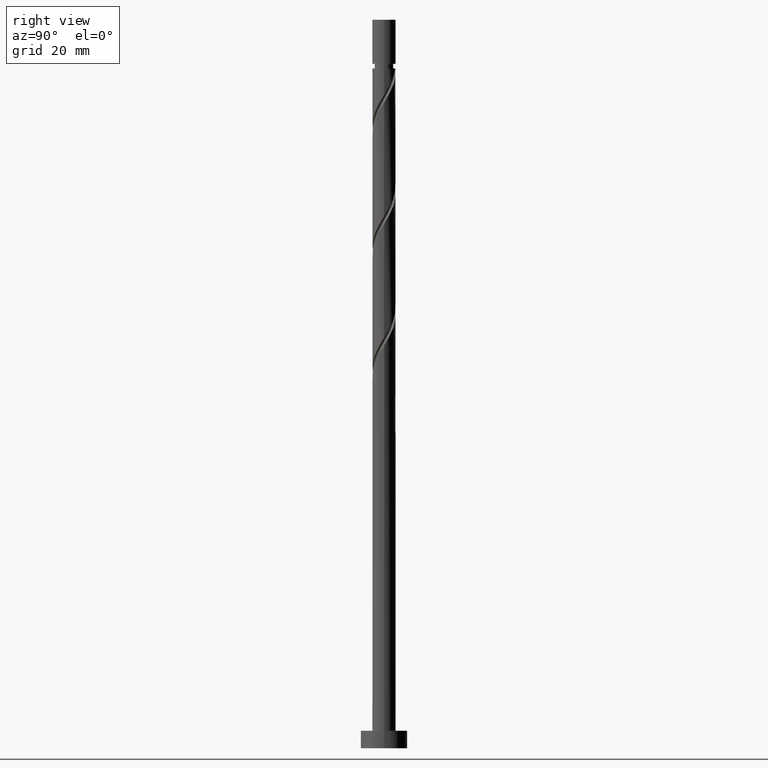
[diagram: clean part render]
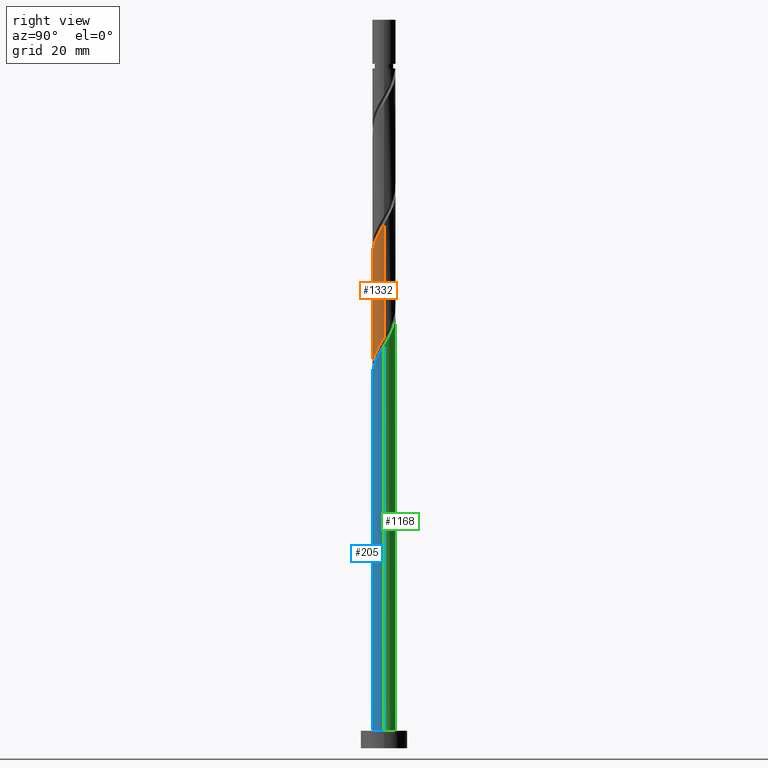
[diagram: same view with three faces highlighted in distinct colors, each labeled with its STEP entity id]
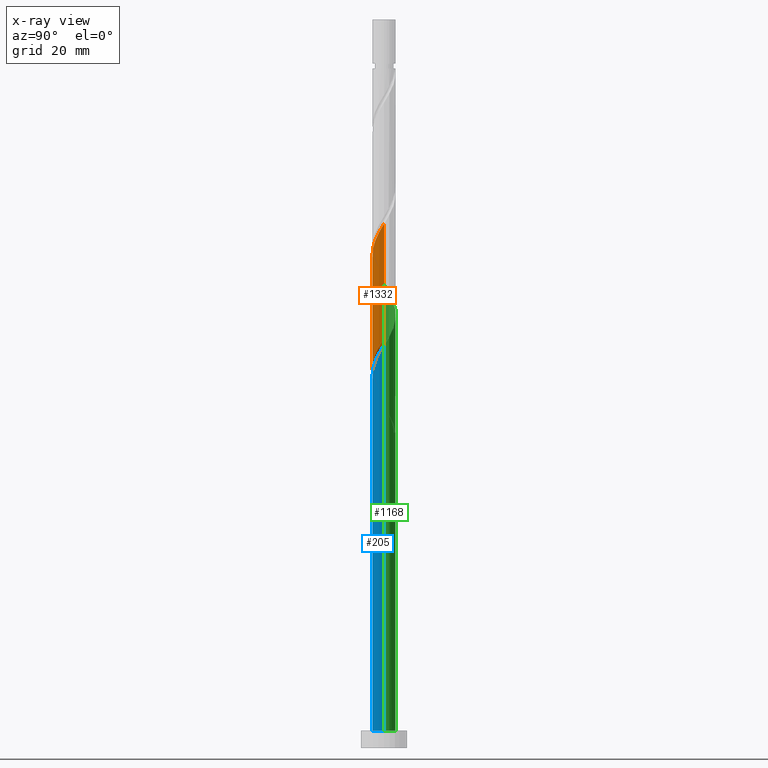
[diagram: x-ray of the same camera — body ghosted, the three highlighted faces saturated]
A machine part, right view with three faces highlighted in distinct colors.
The next image is the same camera in x-ray (body ghosted, the three faces saturated) — at least one of them is partly hidden behind the body in this view.
Their STEP definitions:

[orange] entity #1332 — the highlighted cylindrical surface (edge-blend (fillet) strip) has radius 2 mm, axis along (-0, -0, -1).
#10 = EDGE_CURVE ( 'NONE', #788, #484, #1406, .T. ) ;
#29 = ORIENTED_EDGE ( 'NONE', *, *, #1352, .F. ) ;
#47 = CARTESIAN_POINT ( 'NONE',  ( 2.000000000000000444, -0.2010075630518412537, 70.09353228896205223 ) ) ;
#54 = CARTESIAN_POINT ( 'NONE',  ( 1.474043792816781107, -1.351737732275876791, 87.47136775623299343 ) ) ;
#78 = DIRECTION ( 'NONE',  ( -0.000000000000000000, -0.000000000000000000, -1.000000000000000000 ) ) ;
#85 = CARTESIAN_POINT ( 'NONE',  ( -2.000000000000000000, -0.1139474748928700348, 60.20068128691049480 ) ) ;
#90 = EDGE_CURVE ( 'NONE', #788, #971, #322, .T. ) ;
#94 = CARTESIAN_POINT ( 'NONE',  ( -1.474043792816779552, -1.351737732275874571, 62.47136775623295080 ) ) ;
#100 = CARTESIAN_POINT ( 'NONE',  ( 2.000000000000000000, 2.908661939941925501E-15, 70.42783686436990820 ) ) ;
#118 = CARTESIAN_POINT ( 'NONE',  ( 2.000000000000000000, 2.449293598294705921E-16, 125.0000000000000000 ) ) ;
#151 = ORIENTED_EDGE ( 'NONE', *, *, #1450, .F. ) ;
#153 = VECTOR ( 'NONE', #78, 1000.000000000000000 ) ;
#174 = CARTESIAN_POINT ( 'NONE',  ( 2.000000000000000000, 2.908661939941925501E-15, 70.42783686436990820 ) ) ;
#184 = CARTESIAN_POINT ( 'NONE',  ( -1.960000000000003517, -0.3979949748426483969, 80.17970108956632203 ) ) ;
#191 = CARTESIAN_POINT ( 'NONE',  ( 0.7084284778787396375, -1.896963788657572092, 85.90886775623295080 ) ) ;
#207 = CARTESIAN_POINT ( 'NONE',  ( 0.08756147180655654561, -2.023036211342433610, 84.86720108956632203 ) ) ;
#214 = CARTESIAN_POINT ( 'NONE',  ( -1.819608885673918985, -0.8300743961697152340, 61.42970108956628650 ) ) ;
#239 = CARTESIAN_POINT ( 'NONE',  ( -1.688138017008851577, -1.118272131136731407, 61.95053442289962931 ) ) ;
#307 = CARTESIAN_POINT ( 'NONE',  ( 2.000000000000003553, 1.634248203369422348E-15, 89.93156531476270743 ) ) ;
#322 = LINE ( 'NONE', #806, #153 ) ;
#330 = CARTESIAN_POINT ( 'NONE',  ( -2.000000000000003553, -1.904124053467125253E-15, 79.51489864809602182 ) ) ;
#352 = CARTESIAN_POINT ( 'NONE',  ( -2.000000000000000444, 2.413889548096134639E-15, 60.01117019770322258 ) ) ;
#425 = CARTESIAN_POINT ( 'NONE',  ( 0.3979949748426482303, -1.960000000000003517, 85.38803442289960799 ) ) ;
#428 = AXIS2_PLACEMENT_3D ( 'NONE', #1144, #925, #1287 ) ;
#433 = CARTESIAN_POINT ( 'NONE',  ( -1.351737732275876791, -1.474043792816781107, 82.26303442289962220 ) ) ;
#444 = CYLINDRICAL_SURFACE ( 'NONE', #428, 2.000000000000000000 ) ;
#454 = CARTESIAN_POINT ( 'NONE',  ( 2.000000000000003553, -0.1139474748928598069, 89.74205422555542100 ) ) ;
#476 = CARTESIAN_POINT ( 'NONE',  ( 1.741083561036292915, -0.9841890232517234161, 68.72136775623296501 ) ) ;
#484 = VERTEX_POINT ( 'NONE', #986 ) ;
#491 = CARTESIAN_POINT ( 'NONE',  ( -0.7084284778787394155, -1.896963788657568539, 64.03386775623295080 ) ) ;
#537 = ORIENTED_EDGE ( 'NONE', *, *, #10, .F. ) ;
#553 = CARTESIAN_POINT ( 'NONE',  ( -0.8300743961697172324, -1.819608885673921650, 83.30470108956629360 ) ) ;
#573 = CARTESIAN_POINT ( 'NONE',  ( -1.118272131136734071, -1.688138017008854241, 82.78386775623296501 ) ) ;
#588 = CARTESIAN_POINT ( 'NONE',  ( -0.08756147180655729501, -2.023036211342430946, 65.07553442289960799 ) ) ;
#604 = VECTOR ( 'NONE', #821, 1000.000000000000000 ) ;
#653 = ORIENTED_EDGE ( 'NONE', *, *, #90, .T. ) ;
#715 = CARTESIAN_POINT ( 'NONE',  ( 0.8300743961697152340, -1.819608885673918985, 66.63803442289960799 ) ) ;
#724 = CARTESIAN_POINT ( 'NONE',  ( 1.118272131136731407, -1.688138017008851577, 67.15886775623295080 ) ) ;
#788 = VERTEX_POINT ( 'NONE', #811 ) ;
#806 = CARTESIAN_POINT ( 'NONE',  ( -2.000000000000000000, 0.000000000000000000, 125.0000000000000000 ) ) ;
#811 = CARTESIAN_POINT ( 'NONE',  ( -2.000000000000003553, -1.904124053467125253E-15, 79.51489864809602182 ) ) ;
#814 = CARTESIAN_POINT ( 'NONE',  ( -1.896963788657572092, -0.7084284778787399706, 80.70053442289963641 ) ) ;
#821 = DIRECTION ( 'NONE',  ( -0.000000000000000000, -0.000000000000000000, -1.000000000000000000 ) ) ;
#828 = VERTEX_POINT ( 'NONE', #100 ) ;
#905 = CARTESIAN_POINT ( 'NONE',  ( 1.951079754338990169, -0.5418766612026997276, 89.03386775623297922 ) ) ;
#914 = CARTESIAN_POINT ( 'NONE',  ( -2.000000000000003997, -0.2010075630518408374, 79.84920322350387778 ) ) ;
#925 = DIRECTION ( 'NONE',  ( -0.000000000000000000, -0.000000000000000000, -1.000000000000000000 ) ) ;
#926 = CARTESIAN_POINT ( 'NONE',  ( 1.819608885673921650, -0.8300743961697172324, 88.51303442289963641 ) ) ;
#934 = CARTESIAN_POINT ( 'NONE',  ( 1.259949568624708416, -1.585203333415019511, 86.95053442289962220 ) ) ;
#949 = CARTESIAN_POINT ( 'NONE',  ( 1.896963788657568539, -0.7084284778787395265, 69.24220108956626518 ) ) ;
#957 = CARTESIAN_POINT ( 'NONE',  ( 1.585203333415016402, -1.259949568624706862, 68.20053442289960799 ) ) ;
#971 = VERTEX_POINT ( 'NONE', #1331 ) ;
#972 = CARTESIAN_POINT ( 'NONE',  ( -1.987057982840708892, -0.2271575946980706195, 60.38803442289960799 ) ) ;
#986 = CARTESIAN_POINT ( 'NONE',  ( 2.000000000000003553, 1.634248203369422348E-15, 89.93156531476270743 ) ) ;
#1030 = CARTESIAN_POINT ( 'NONE',  ( 1.959999999999999964, -0.3979949748426484524, 69.76303442289962220 ) ) ;
#1045 = CARTESIAN_POINT ( 'NONE',  ( 1.987057982840712000, -0.2271575946980717020, 89.55470108956629360 ) ) ;
#1066 = CARTESIAN_POINT ( 'NONE',  ( -1.951079754338987282, -0.5418766612026981733, 60.90886775623295790 ) ) ;
#1073 = CARTESIAN_POINT ( 'NONE',  ( -1.259949568624706862, -1.585203333415016402, 62.99220108956627939 ) ) ;
#1144 = CARTESIAN_POINT ( 'NONE',  ( 0.000000000000000000, 0.000000000000000000, 125.0000000000000000 ) ) ;
#1192 = CARTESIAN_POINT ( 'NONE',  ( -0.9841890232517231940, -1.741083561036292915, 63.51303442289961509 ) ) ;
#1205 = LINE ( 'NONE', #118, #604 ) ;
#1243 = EDGE_LOOP ( 'NONE', ( #151, #537, #653, #29 ) ) ;
#1280 = CARTESIAN_POINT ( 'NONE',  ( 0.9841890232517241932, -1.741083561036296024, 86.42970108956629360 ) ) ;
#1287 = DIRECTION ( 'NONE',  ( -1.000000000000000000, 0.000000000000000000, 0.000000000000000000 ) ) ;
#1295 = CARTESIAN_POINT ( 'NONE',  ( -0.2271575946980715910, -1.987057982840712000, 84.34636775623295080 ) ) ;
#1331 = CARTESIAN_POINT ( 'NONE',  ( -2.000000000000000444, 2.413889548096134639E-15, 60.01117019770322258 ) ) ;
#1332 = ADVANCED_FACE ( 'NONE', ( #1524 ), #444, .T. ) ;
#1352 = EDGE_CURVE ( 'NONE', #828, #971, #1366, .T. ) ;
#1366 =( BOUNDED_CURVE ( )  B_SPLINE_CURVE ( 2, ( #174, #47, #1030, #949, #476, #957, #1553, #724, #715, #1440, #1572, #588, #1432, #491, #1192, #1073, #94, #239, #214, #1066, #972, #85, #352 ),
 .UNSPECIFIED., .F., .T. ) 
 B_SPLINE_CURVE_WITH_KNOTS ( ( 3, 2, 2, 2, 2, 2, 2, 2, 2, 2, 2, 3 ),
 ( 0.8045322023138551382, 0.8125000000000000000, 0.8249999999999999556, 0.8375000000000000222, 0.8499999999999999778, 0.8625000000000000444, 0.8750000000000000000, 0.8874999999999999556, 0.9000000000000000222, 0.9124999999999999778, 0.9250000000000000444, 0.9295322023138550271 ),
 .UNSPECIFIED. ) 
 CURVE ( )  GEOMETRIC_REPRESENTATION_ITEM ( )  RATIONAL_B_SPLINE_CURVE ( ( 0.9039174447099351806, 0.9019565955404644786, 0.9090909090909128354, 0.8978984914501290104, 0.9090909090909128354, 0.8978984914501290104, 0.9090909090909128354, 0.8978984914501290104, 0.9090909090909128354, 0.8978984914501290104, 0.9090909090909128354, 0.8978984914501290104, 0.9090909090909128354, 0.8978984914501290104, 0.9090909090909128354, 0.8978984914501290104, 0.9090909090909128354, 0.8978984914501290104, 0.9090909090909128354, 0.8978984914501290104, 0.9090909090909128354, 0.9050328050005774783, 0.9039174447099352916 ) ) 
 REPRESENTATION_ITEM ( '' )  );
#1395 = CARTESIAN_POINT ( 'NONE',  ( -0.5418766612026995055, -1.951079754338990169, 83.82553442289957957 ) ) ;
#1401 = CARTESIAN_POINT ( 'NONE',  ( -1.585203333415019511, -1.259949568624708416, 81.74220108956629360 ) ) ;
#1406 =( BOUNDED_CURVE ( )  B_SPLINE_CURVE ( 2, ( #330, #914, #184, #814, #1519, #1401, #433, #573, #553, #1395, #1295, #207, #425, #191, #1280, #934, #54, #1412, #926, #905, #1045, #454, #307 ),
 .UNSPECIFIED., .F., .T. ) 
 B_SPLINE_CURVE_WITH_KNOTS ( ( 3, 2, 2, 2, 2, 2, 2, 2, 2, 2, 2, 3 ),
 ( 0.3045322023138551382, 0.3125000000000000000, 0.3249999999999999556, 0.3375000000000000222, 0.3499999999999999778, 0.3625000000000000444, 0.3750000000000000000, 0.3874999999999999556, 0.4000000000000000222, 0.4124999999999999778, 0.4250000000000000444, 0.4295322023138554712 ),
 .UNSPECIFIED. ) 
 CURVE ( )  GEOMETRIC_REPRESENTATION_ITEM ( )  RATIONAL_B_SPLINE_CURVE ( ( 0.9039174447099409537, 0.9019565955404700297, 0.9090909090909186085, 0.8978984914501346726, 0.9090909090909186085, 0.8978984914501346726, 0.9090909090909186085, 0.8978984914501346726, 0.9090909090909186085, 0.8978984914501346726, 0.9090909090909186085, 0.8978984914501346726, 0.9090909090909186085, 0.8978984914501346726, 0.9090909090909186085, 0.8978984914501346726, 0.9090909090909186085, 0.8978984914501346726, 0.9090909090909186085, 0.8978984914501346726, 0.9090909090909186085, 0.9050328050005828073, 0.9039174447099407317 ) ) 
 REPRESENTATION_ITEM ( '' )  );
#1412 = CARTESIAN_POINT ( 'NONE',  ( 1.688138017008854241, -1.118272131136734515, 87.99220108956630781 ) ) ;
#1432 = CARTESIAN_POINT ( 'NONE',  ( -0.3979949748426483969, -1.959999999999999964, 64.55470108956629360 ) ) ;
#1440 = CARTESIAN_POINT ( 'NONE',  ( 0.5418766612026980622, -1.951079754338987282, 66.11720108956627939 ) ) ;
#1450 = EDGE_CURVE ( 'NONE', #484, #828, #1205, .T. ) ;
#1519 = CARTESIAN_POINT ( 'NONE',  ( -1.741083561036296024, -0.9841890232517241932, 81.22136775623296501 ) ) ;
#1524 = FACE_OUTER_BOUND ( 'NONE', #1243, .T. ) ;
#1553 = CARTESIAN_POINT ( 'NONE',  ( 1.351737732275874571, -1.474043792816779552, 67.67970108956626518 ) ) ;
#1572 = CARTESIAN_POINT ( 'NONE',  ( 0.2271575946980705085, -1.987057982840708892, 65.59636775623295080 ) ) ;

[blue] entity #205 — the highlighted cylindrical surface (edge-blend (fillet) strip) has radius 2 mm, axis along (-0, -0, -1).
#13 = CARTESIAN_POINT ( 'NONE',  ( -2.000000000000002220, -0.2010075630518456391, 59.01586989017054208 ) ) ;
#52 = CARTESIAN_POINT ( 'NONE',  ( 1.259949568624708416, -1.585203333415019511, 66.11720108956629360 ) ) ;
#58 = EDGE_CURVE ( 'NONE', #948, #1570, #445, .T. ) ;
#61 = CARTESIAN_POINT ( 'NONE',  ( -1.896963788657572092, -0.7084284778787399706, 59.86720108956630071 ) ) ;
#62 = VECTOR ( 'NONE', #485, 1000.000000000000000 ) ;
#64 = DIRECTION ( 'NONE',  ( -0.000000000000000000, -0.000000000000000000, -1.000000000000000000 ) ) ;
#119 = DIRECTION ( 'NONE',  ( -0.000000000000000000, -0.000000000000000000, -1.000000000000000000 ) ) ;
#125 = ORIENTED_EDGE ( 'NONE', *, *, #1027, .T. ) ;
#181 = CARTESIAN_POINT ( 'NONE',  ( -0.2271575946980715910, -1.987057982840712000, 63.51303442289962931 ) ) ;
#205 = ADVANCED_FACE ( 'NONE', ( #831 ), #353, .T. ) ;
#305 = CARTESIAN_POINT ( 'NONE',  ( 2.000000000000003553, -0.1139474748928625686, 68.90872089222207819 ) ) ;
#353 = CYLINDRICAL_SURFACE ( 'NONE', #1370, 2.000000000000000000 ) ;
#379 = ORIENTED_EDGE ( 'NONE', *, *, #565, .F. ) ;
#388 = VERTEX_POINT ( 'NONE', #1493 ) ;
#401 = CARTESIAN_POINT ( 'NONE',  ( 2.000000000000003553, 1.634248203369422348E-15, 69.09823198142936462 ) ) ;
#423 = CARTESIAN_POINT ( 'NONE',  ( 0.3979949748426482303, -1.960000000000003517, 64.55470108956629360 ) ) ;
#443 = CARTESIAN_POINT ( 'NONE',  ( 1.474043792816781107, -1.351737732275876791, 66.63803442289963641 ) ) ;
#445 = LINE ( 'NONE', #671, #1090 ) ;
#451 = AXIS2_PLACEMENT_3D ( 'NONE', #1001, #729, #1245 ) ;
#452 = CARTESIAN_POINT ( 'NONE',  ( 1.688138017008854241, -1.118272131136734515, 67.15886775623296501 ) ) ;
#477 = VERTEX_POINT ( 'NONE', #534 ) ;
#485 = DIRECTION ( 'NONE',  ( -0.000000000000000000, -0.000000000000000000, -1.000000000000000000 ) ) ;
#500 = CIRCLE ( 'NONE', #451, 2.000000000000000000 ) ;
#525 = ORIENTED_EDGE ( 'NONE', *, *, #1404, .T. ) ;
#534 = CARTESIAN_POINT ( 'NONE',  ( -2.000000000000003553, -1.904124053467125253E-15, 58.68156531476270743 ) ) ;
#558 = CARTESIAN_POINT ( 'NONE',  ( 1.951079754338990169, -0.5418766612026997276, 68.20053442289962220 ) ) ;
#565 = EDGE_CURVE ( 'NONE', #477, #948, #665, .T. ) ;
#589 = DIRECTION ( 'NONE',  ( -1.000000000000000000, 0.000000000000000000, 0.000000000000000000 ) ) ;
#641 = EDGE_LOOP ( 'NONE', ( #1477, #379, #525, #125 ) ) ;
#662 = CARTESIAN_POINT ( 'NONE',  ( -0.8300743961697172324, -1.819608885673921650, 62.47136775623296501 ) ) ;
#665 =( BOUNDED_CURVE ( )  B_SPLINE_CURVE ( 2, ( #762, #13, #1248, #61, #911, #1409, #1166, #684, #662, #1529, #181, #1399, #423, #1143, #1393, #52, #443, #452, #669, #558, #1037, #305, #924 ),
 .UNSPECIFIED., .F., .T. ) 
 B_SPLINE_CURVE_WITH_KNOTS ( ( 3, 2, 2, 2, 2, 2, 2, 2, 2, 2, 2, 3 ),
 ( 0.05453220231385533245, 0.06250000000000000000, 0.07499999999999995559, 0.08750000000000002220, 0.09999999999999997780, 0.1125000000000000444, 0.1250000000000000000, 0.1374999999999999556, 0.1500000000000000222, 0.1624999999999999778, 0.1750000000000000444, 0.1795322023138553602 ),
 .UNSPECIFIED. ) 
 CURVE ( )  GEOMETRIC_REPRESENTATION_ITEM ( )  RATIONAL_B_SPLINE_CURVE ( ( 0.9039174447099408427, 0.9019565955404703628, 0.9090909090909186085, 0.8978984914501346726, 0.9090909090909186085, 0.8978984914501346726, 0.9090909090909186085, 0.8978984914501346726, 0.9090909090909186085, 0.8978984914501346726, 0.9090909090909186085, 0.8978984914501346726, 0.9090909090909186085, 0.8978984914501346726, 0.9090909090909186085, 0.8978984914501346726, 0.9090909090909186085, 0.8978984914501346726, 0.9090909090909186085, 0.8978984914501346726, 0.9090909090909186085, 0.9050328050005829184, 0.9039174447099408427 ) ) 
 REPRESENTATION_ITEM ( '' )  );
#669 = CARTESIAN_POINT ( 'NONE',  ( 1.819608885673921650, -0.8300743961697172324, 67.67970108956627939 ) ) ;
#671 = CARTESIAN_POINT ( 'NONE',  ( 2.000000000000000000, 2.449293598294705921E-16, 125.0000000000000000 ) ) ;
#684 = CARTESIAN_POINT ( 'NONE',  ( -1.118272131136734071, -1.688138017008854241, 61.95053442289962931 ) ) ;
#729 = DIRECTION ( 'NONE',  ( 0.000000000000000000, 0.000000000000000000, 1.000000000000000000 ) ) ;
#762 = CARTESIAN_POINT ( 'NONE',  ( -2.000000000000003553, -1.904124053467125253E-15, 58.68156531476270743 ) ) ;
#830 = LINE ( 'NONE', #1546, #62 ) ;
#831 = FACE_OUTER_BOUND ( 'NONE', #641, .T. ) ;
#911 = CARTESIAN_POINT ( 'NONE',  ( -1.741083561036296024, -0.9841890232517241932, 60.38803442289961509 ) ) ;
#924 = CARTESIAN_POINT ( 'NONE',  ( 2.000000000000003553, 1.634248203369422348E-15, 69.09823198142936462 ) ) ;
#948 = VERTEX_POINT ( 'NONE', #401 ) ;
#979 = CARTESIAN_POINT ( 'NONE',  ( 2.000000000000000000, 2.449293598294705921E-16, 3.000000000000000000 ) ) ;
#1001 = CARTESIAN_POINT ( 'NONE',  ( 0.000000000000000000, 0.000000000000000000, 3.000000000000000000 ) ) ;
#1027 = EDGE_CURVE ( 'NONE', #388, #1570, #500, .T. ) ;
#1037 = CARTESIAN_POINT ( 'NONE',  ( 1.987057982840712000, -0.2271575946980717020, 68.72136775623295080 ) ) ;
#1090 = VECTOR ( 'NONE', #64, 1000.000000000000000 ) ;
#1143 = CARTESIAN_POINT ( 'NONE',  ( 0.7084284778787396375, -1.896963788657572092, 65.07553442289962220 ) ) ;
#1166 = CARTESIAN_POINT ( 'NONE',  ( -1.351737732275876791, -1.474043792816781107, 61.42970108956629360 ) ) ;
#1245 = DIRECTION ( 'NONE',  ( 1.000000000000000000, 0.000000000000000000, 0.000000000000000000 ) ) ;
#1248 = CARTESIAN_POINT ( 'NONE',  ( -1.960000000000003517, -0.3979949748426483969, 59.34636775623296501 ) ) ;
#1370 = AXIS2_PLACEMENT_3D ( 'NONE', #1547, #119, #589 ) ;
#1393 = CARTESIAN_POINT ( 'NONE',  ( 0.9841890232517241932, -1.741083561036296024, 65.59636775623295080 ) ) ;
#1399 = CARTESIAN_POINT ( 'NONE',  ( 0.08756147180655654561, -2.023036211342433610, 64.03386775623297922 ) ) ;
#1404 = EDGE_CURVE ( 'NONE', #477, #388, #830, .T. ) ;
#1409 = CARTESIAN_POINT ( 'NONE',  ( -1.585203333415019511, -1.259949568624708416, 60.90886775623296501 ) ) ;
#1477 = ORIENTED_EDGE ( 'NONE', *, *, #58, .F. ) ;
#1493 = CARTESIAN_POINT ( 'NONE',  ( -2.000000000000000000, 0.000000000000000000, 3.000000000000000000 ) ) ;
#1529 = CARTESIAN_POINT ( 'NONE',  ( -0.5418766612026995055, -1.951079754338990169, 62.99220108956630781 ) ) ;
#1546 = CARTESIAN_POINT ( 'NONE',  ( -2.000000000000000000, 0.000000000000000000, 125.0000000000000000 ) ) ;
#1547 = CARTESIAN_POINT ( 'NONE',  ( 0.000000000000000000, 0.000000000000000000, 125.0000000000000000 ) ) ;
#1570 = VERTEX_POINT ( 'NONE', #979 ) ;

[green] entity #1168 — the highlighted cylindrical surface (edge-blend (fillet) strip) has radius 2 mm, axis along (-0, -0, -1).
#7 =( BOUNDED_CURVE ( )  B_SPLINE_CURVE ( 2, ( #109, #1455, #1082, #216, #702, #240, #857, #1067, #470, #725, #1206 ),
 .UNSPECIFIED., .F., .T. ) 
 B_SPLINE_CURVE_WITH_KNOTS ( ( 3, 2, 2, 2, 2, 3 ),
 ( 0.000000000000000000, 0.01249999999999995559, 0.02500000000000002220, 0.03749999999999997780, 0.05000000000000004441, 0.05453220231385533245 ),
 .UNSPECIFIED. ) 
 CURVE ( )  GEOMETRIC_REPRESENTATION_ITEM ( )  RATIONAL_B_SPLINE_CURVE ( ( 0.9090909090909186085, 0.8978984914501346726, 0.9090909090909186085, 0.8978984914501346726, 0.9090909090909186085, 0.8978984914501346726, 0.9090909090909186085, 0.8978984914501346726, 0.9090909090909186085, 0.9050328050005829184, 0.9039174447099408427 ) ) 
 REPRESENTATION_ITEM ( '' )  );
#19 = CARTESIAN_POINT ( 'NONE',  ( -0.2271575946980707306, 1.987057982840708892, 55.17970108956629360 ) ) ;
#36 = CARTESIAN_POINT ( 'NONE',  ( -2.000000000000000888, 0.2010075630518382006, 59.67686562229538794 ) ) ;
#41 = EDGE_CURVE ( 'NONE', #948, #788, #155, .T. ) ;
#55 = EDGE_LOOP ( 'NONE', ( #796, #1222, #594, #419, #730, #126, #775, #256 ) ) ;
#58 = EDGE_CURVE ( 'NONE', #948, #1570, #445, .T. ) ;
#62 = VECTOR ( 'NONE', #485, 1000.000000000000000 ) ;
#64 = DIRECTION ( 'NONE',  ( -0.000000000000000000, -0.000000000000000000, -1.000000000000000000 ) ) ;
#70 = VERTEX_POINT ( 'NONE', #1525 ) ;
#75 = DIRECTION ( 'NONE',  ( 0.000000000000000000, -2.602085213965211588E-14, -1.000000000000000000 ) ) ;
#78 = DIRECTION ( 'NONE',  ( -0.000000000000000000, -0.000000000000000000, -1.000000000000000000 ) ) ;
#90 = EDGE_CURVE ( 'NONE', #788, #971, #322, .T. ) ;
#109 = CARTESIAN_POINT ( 'NONE',  ( -0.3979949748426479528, 1.960000000000003517, 54.13803442289962220 ) ) ;
#126 = ORIENTED_EDGE ( 'NONE', *, *, #584, .T. ) ;
#149 = CARTESIAN_POINT ( 'NONE',  ( -0.8300743961697154560, 1.819608885673918985, 56.22136775623295080 ) ) ;
#153 = VECTOR ( 'NONE', #78, 1000.000000000000000 ) ;
#155 =( BOUNDED_CURVE ( )  B_SPLINE_CURVE ( 2, ( #1266, #789, #1040, #1161, #1418, #920, #176, #560, #693, #664, #1274, #679, #1288, #1177, #782, #581, #1503, #1052, #300, #1145, #1031, #1511, #1154 ),
 .UNSPECIFIED., .F., .T. ) 
 B_SPLINE_CURVE_WITH_KNOTS ( ( 3, 2, 2, 2, 2, 2, 2, 2, 2, 2, 2, 3 ),
 ( 0.1795322023138553602, 0.1875000000000000000, 0.1999999999999999556, 0.2125000000000000222, 0.2249999999999999778, 0.2375000000000000444, 0.2500000000000000000, 0.2624999999999999556, 0.2750000000000000222, 0.2874999999999999778, 0.3000000000000000444, 0.3045322023138551382 ),
 .UNSPECIFIED. ) 
 CURVE ( )  GEOMETRIC_REPRESENTATION_ITEM ( )  RATIONAL_B_SPLINE_CURVE ( ( 0.9039174447099408427, 0.9019565955404703628, 0.9090909090909186085, 0.8978984914501346726, 0.9090909090909186085, 0.8978984914501346726, 0.9090909090909186085, 0.8978984914501346726, 0.9090909090909186085, 0.8978984914501346726, 0.9090909090909186085, 0.8978984914501346726, 0.9090909090909186085, 0.8978984914501346726, 0.9090909090909186085, 0.8978984914501346726, 0.9090909090909186085, 0.8978984914501346726, 0.9090909090909186085, 0.8978984914501346726, 0.9090909090909186085, 0.9050328050005831404, 0.9039174447099409537 ) ) 
 REPRESENTATION_ITEM ( '' )  );
#176 = CARTESIAN_POINT ( 'NONE',  ( 1.351737732275877013, 1.474043792816781107, 71.84636775623296501 ) ) ;
#187 = AXIS2_PLACEMENT_3D ( 'NONE', #930, #75, #1416 ) ;
#216 = CARTESIAN_POINT ( 'NONE',  ( -1.259949568624708416, 1.585203333415019511, 55.70053442289962931 ) ) ;
#240 = CARTESIAN_POINT ( 'NONE',  ( -1.688138017008854463, 1.118272131136734071, 56.74220108956628650 ) ) ;
#254 = EDGE_CURVE ( 'NONE', #70, #477, #7, .T. ) ;
#256 = ORIENTED_EDGE ( 'NONE', *, *, #90, .F. ) ;
#281 = DIRECTION ( 'NONE',  ( -0.000000000000000000, -0.000000000000000000, -1.000000000000000000 ) ) ;
#300 = CARTESIAN_POINT ( 'NONE',  ( -1.819608885673922094, 0.8300743961697170104, 78.09636775623295080 ) ) ;
#322 = LINE ( 'NONE', #806, #153 ) ;
#340 =( BOUNDED_CURVE ( )  B_SPLINE_CURVE ( 2, ( #1238, #36, #499, #1256, #506, #1119, #870, #747, #149, #1348, #19, #639, #620 ),
 .UNSPECIFIED., .F., .T. ) 
 B_SPLINE_CURVE_WITH_KNOTS ( ( 3, 2, 2, 2, 2, 2, 3 ),
 ( 0.9295322023138550271, 0.9375000000000000000, 0.9499999999999999556, 0.9625000000000000222, 0.9749999999999999778, 0.9875000000000000444, 1.000000000000000000 ),
 .UNSPECIFIED. ) 
 CURVE ( )  GEOMETRIC_REPRESENTATION_ITEM ( )  RATIONAL_B_SPLINE_CURVE ( ( 0.9039174447099352916, 0.9019565955404643676, 0.9090909090909128354, 0.8978984914501290104, 0.9090909090909128354, 0.8978984914501290104, 0.9090909090909128354, 0.8978984914501290104, 0.9090909090909128354, 0.8978984914501290104, 0.9090909090909128354, 0.8978984914501290104, 0.9090909090909128354 ) ) 
 REPRESENTATION_ITEM ( '' )  );
#388 = VERTEX_POINT ( 'NONE', #1493 ) ;
#401 = CARTESIAN_POINT ( 'NONE',  ( 2.000000000000003553, 1.634248203369422348E-15, 69.09823198142936462 ) ) ;
#419 = ORIENTED_EDGE ( 'NONE', *, *, #1404, .F. ) ;
#438 = DIRECTION ( 'NONE',  ( 0.000000000000000000, 0.000000000000000000, 1.000000000000000000 ) ) ;
#445 = LINE ( 'NONE', #671, #1090 ) ;
#468 = EDGE_CURVE ( 'NONE', #971, #903, #340, .T. ) ;
#470 = CARTESIAN_POINT ( 'NONE',  ( -1.987057982840712000, 0.2271575946980715077, 58.30470108956629360 ) ) ;
#477 = VERTEX_POINT ( 'NONE', #534 ) ;
#485 = DIRECTION ( 'NONE',  ( -0.000000000000000000, -0.000000000000000000, -1.000000000000000000 ) ) ;
#499 = CARTESIAN_POINT ( 'NONE',  ( -1.959999999999999964, 0.3979949748426482303, 59.34636775623296501 ) ) ;
#506 = CARTESIAN_POINT ( 'NONE',  ( -1.741083561036292915, 0.9841890232517231940, 58.30470108956628650 ) ) ;
#524 = FACE_OUTER_BOUND ( 'NONE', #55, .T. ) ;
#534 = CARTESIAN_POINT ( 'NONE',  ( -2.000000000000003553, -1.904124053467125253E-15, 58.68156531476270743 ) ) ;
#560 = CARTESIAN_POINT ( 'NONE',  ( 1.118272131136734515, 1.688138017008854241, 72.36720108956627939 ) ) ;
#581 = CARTESIAN_POINT ( 'NONE',  ( -1.259949568624708416, 1.585203333415019511, 76.53386775623299343 ) ) ;
#584 = EDGE_CURVE ( 'NONE', #70, #903, #1555, .T. ) ;
#594 = ORIENTED_EDGE ( 'NONE', *, *, #659, .T. ) ;
#602 = AXIS2_PLACEMENT_3D ( 'NONE', #749, #281, #634 ) ;
#620 = CARTESIAN_POINT ( 'NONE',  ( 0.3979949748426486189, 1.960000000000000409, 54.13803442289962220 ) ) ;
#634 = DIRECTION ( 'NONE',  ( -1.000000000000000000, 0.000000000000000000, 0.000000000000000000 ) ) ;
#639 = CARTESIAN_POINT ( 'NONE',  ( 0.08756147180655703133, 2.023036211342430946, 54.65886775623293659 ) ) ;
#659 = EDGE_CURVE ( 'NONE', #1570, #388, #879, .T. ) ;
#664 = CARTESIAN_POINT ( 'NONE',  ( 0.5418766612026997276, 1.951079754338990169, 73.40886775623297922 ) ) ;
#671 = CARTESIAN_POINT ( 'NONE',  ( 2.000000000000000000, 2.449293598294705921E-16, 125.0000000000000000 ) ) ;
#679 = CARTESIAN_POINT ( 'NONE',  ( -0.08756147180655629580, 2.023036211342433610, 74.45053442289963641 ) ) ;
#693 = CARTESIAN_POINT ( 'NONE',  ( 0.8300743961697175655, 1.819608885673922094, 72.88803442289963641 ) ) ;
#702 = CARTESIAN_POINT ( 'NONE',  ( -1.474043792816781551, 1.351737732275876791, 56.22136775623295790 ) ) ;
#725 = CARTESIAN_POINT ( 'NONE',  ( -2.000000000000003553, 0.1139474748928630821, 58.49205422555541389 ) ) ;
#730 = ORIENTED_EDGE ( 'NONE', *, *, #254, .F. ) ;
#747 = CARTESIAN_POINT ( 'NONE',  ( -1.118272131136731851, 1.688138017008851577, 56.74220108956628650 ) ) ;
#749 = CARTESIAN_POINT ( 'NONE',  ( 0.000000000000000000, 0.000000000000000000, 125.0000000000000000 ) ) ;
#775 = ORIENTED_EDGE ( 'NONE', *, *, #468, .F. ) ;
#782 = CARTESIAN_POINT ( 'NONE',  ( -0.9841890232517241932, 1.741083561036295579, 76.01303442289962220 ) ) ;
#788 = VERTEX_POINT ( 'NONE', #811 ) ;
#789 = CARTESIAN_POINT ( 'NONE',  ( 2.000000000000002220, 0.2010075630518459722, 69.43253655683719217 ) ) ;
#796 = ORIENTED_EDGE ( 'NONE', *, *, #41, .F. ) ;
#806 = CARTESIAN_POINT ( 'NONE',  ( -2.000000000000000000, 0.000000000000000000, 125.0000000000000000 ) ) ;
#811 = CARTESIAN_POINT ( 'NONE',  ( -2.000000000000003553, -1.904124053467125253E-15, 79.51489864809602182 ) ) ;
#830 = LINE ( 'NONE', #1546, #62 ) ;
#857 = CARTESIAN_POINT ( 'NONE',  ( -1.819608885673922094, 0.8300743961697170104, 57.26303442289962220 ) ) ;
#870 = CARTESIAN_POINT ( 'NONE',  ( -1.351737732275874793, 1.474043792816779552, 57.26303442289962220 ) ) ;
#879 = CIRCLE ( 'NONE', #1482, 2.000000000000000000 ) ;
#886 = CYLINDRICAL_SURFACE ( 'NONE', #602, 2.000000000000000000 ) ;
#903 = VERTEX_POINT ( 'NONE', #1568 ) ;
#920 = CARTESIAN_POINT ( 'NONE',  ( 1.585203333415019955, 1.259949568624708416, 71.32553442289965062 ) ) ;
#930 = CARTESIAN_POINT ( 'NONE',  ( 0.000000000000000000, 0.000000000000000000, 54.13803442289968615 ) ) ;
#948 = VERTEX_POINT ( 'NONE', #401 ) ;
#971 = VERTEX_POINT ( 'NONE', #1331 ) ;
#979 = CARTESIAN_POINT ( 'NONE',  ( 2.000000000000000000, 2.449293598294705921E-16, 3.000000000000000000 ) ) ;
#1031 = CARTESIAN_POINT ( 'NONE',  ( -1.987057982840712000, 0.2271575946980715077, 79.13803442289962220 ) ) ;
#1040 = CARTESIAN_POINT ( 'NONE',  ( 1.960000000000003517, 0.3979949748426481748, 69.76303442289965062 ) ) ;
#1052 = CARTESIAN_POINT ( 'NONE',  ( -1.688138017008854463, 1.118272131136734071, 77.57553442289963641 ) ) ;
#1067 = CARTESIAN_POINT ( 'NONE',  ( -1.951079754338990169, 0.5418766612026995055, 57.78386775623295790 ) ) ;
#1082 = CARTESIAN_POINT ( 'NONE',  ( -0.9841890232517241932, 1.741083561036295579, 55.17970108956629360 ) ) ;
#1090 = VECTOR ( 'NONE', #64, 1000.000000000000000 ) ;
#1119 = CARTESIAN_POINT ( 'NONE',  ( -1.585203333415016846, 1.259949568624706417, 57.78386775623295080 ) ) ;
#1136 = CARTESIAN_POINT ( 'NONE',  ( 0.000000000000000000, 0.000000000000000000, 3.000000000000000000 ) ) ;
#1145 = CARTESIAN_POINT ( 'NONE',  ( -1.951079754338990169, 0.5418766612026995055, 78.61720108956629360 ) ) ;
#1154 = CARTESIAN_POINT ( 'NONE',  ( -2.000000000000003553, -1.904124053467125253E-15, 79.51489864809602182 ) ) ;
#1161 = CARTESIAN_POINT ( 'NONE',  ( 1.896963788657572092, 0.7084284778787396375, 70.28386775623296501 ) ) ;
#1168 = ADVANCED_FACE ( 'NONE', ( #524 ), #886, .T. ) ;
#1177 = CARTESIAN_POINT ( 'NONE',  ( -0.7084284778787400816, 1.896963788657572092, 75.49220108956627939 ) ) ;
#1206 = CARTESIAN_POINT ( 'NONE',  ( -2.000000000000003553, -1.904124053467125253E-15, 58.68156531476270743 ) ) ;
#1222 = ORIENTED_EDGE ( 'NONE', *, *, #58, .T. ) ;
#1238 = CARTESIAN_POINT ( 'NONE',  ( -2.000000000000000444, 2.413889548096134639E-15, 60.01117019770322258 ) ) ;
#1256 = CARTESIAN_POINT ( 'NONE',  ( -1.896963788657569427, 0.7084284778787393044, 58.82553442289960799 ) ) ;
#1266 = CARTESIAN_POINT ( 'NONE',  ( 2.000000000000003553, 1.634248203369422348E-15, 69.09823198142936462 ) ) ;
#1274 = CARTESIAN_POINT ( 'NONE',  ( 0.2271575946980718963, 1.987057982840712000, 73.92970108956627939 ) ) ;
#1288 = CARTESIAN_POINT ( 'NONE',  ( -0.3979949748426480083, 1.960000000000003517, 74.97136775623295080 ) ) ;
#1331 = CARTESIAN_POINT ( 'NONE',  ( -2.000000000000000444, 2.413889548096134639E-15, 60.01117019770322258 ) ) ;
#1348 = CARTESIAN_POINT ( 'NONE',  ( -0.5418766612026981733, 1.951079754338987282, 55.70053442289960799 ) ) ;
#1404 = EDGE_CURVE ( 'NONE', #477, #388, #830, .T. ) ;
#1416 = DIRECTION ( 'NONE',  ( 0.000000000000000000, 1.000000000000000000, -2.775557561562891351E-14 ) ) ;
#1418 = CARTESIAN_POINT ( 'NONE',  ( 1.741083561036296024, 0.9841890232517238601, 70.80470108956629360 ) ) ;
#1455 = CARTESIAN_POINT ( 'NONE',  ( -0.7084284778787400816, 1.896963788657572092, 54.65886775623295080 ) ) ;
#1482 = AXIS2_PLACEMENT_3D ( 'NONE', #1136, #438, #1516 ) ;
#1493 = CARTESIAN_POINT ( 'NONE',  ( -2.000000000000000000, 0.000000000000000000, 3.000000000000000000 ) ) ;
#1503 = CARTESIAN_POINT ( 'NONE',  ( -1.474043792816781551, 1.351737732275876791, 77.05470108956630781 ) ) ;
#1511 = CARTESIAN_POINT ( 'NONE',  ( -2.000000000000002220, 0.1139474748928679254, 79.32538755888873538 ) ) ;
#1516 = DIRECTION ( 'NONE',  ( 1.000000000000000000, 0.000000000000000000, 0.000000000000000000 ) ) ;
#1525 = CARTESIAN_POINT ( 'NONE',  ( -0.3979949748426479528, 1.960000000000003517, 54.13803442289962220 ) ) ;
#1546 = CARTESIAN_POINT ( 'NONE',  ( -2.000000000000000000, 0.000000000000000000, 125.0000000000000000 ) ) ;
#1555 = CIRCLE ( 'NONE', #187, 2.000000000000000000 ) ;
#1568 = CARTESIAN_POINT ( 'NONE',  ( 0.3979949748426486189, 1.960000000000000409, 54.13803442289962220 ) ) ;
#1570 = VERTEX_POINT ( 'NONE', #979 ) ;